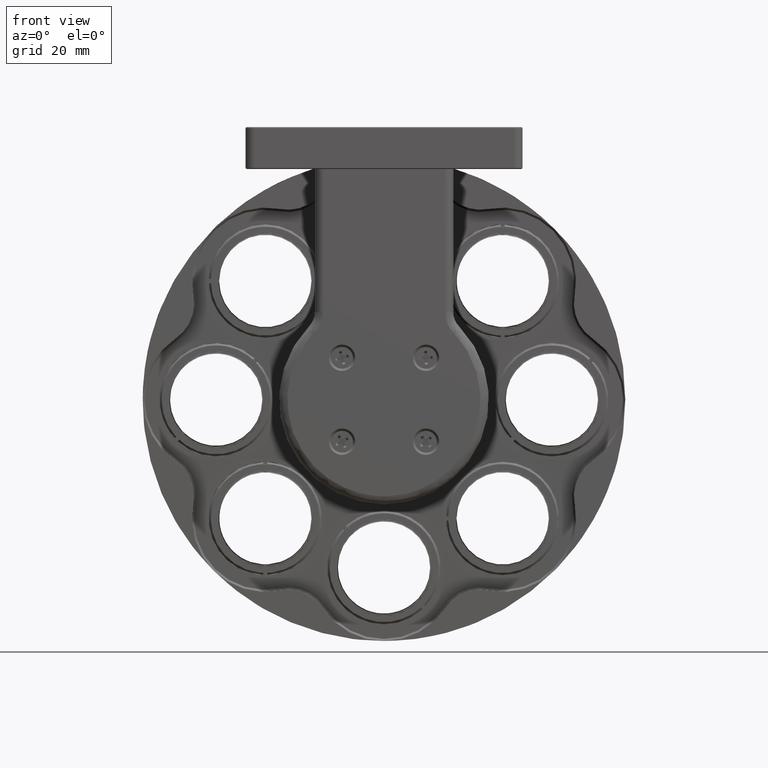
[diagram: clean part render]
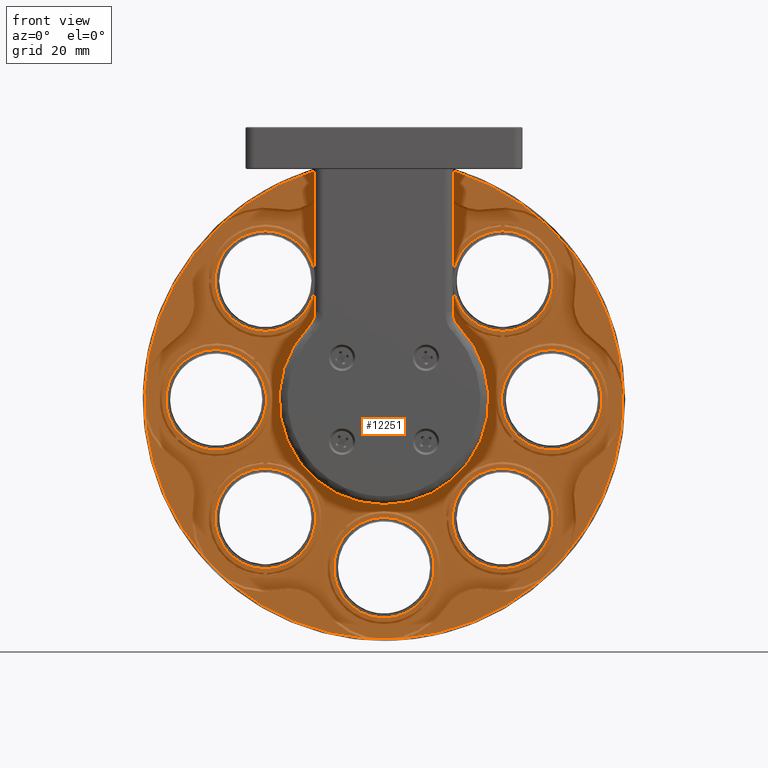
[diagram: same view with one face highlighted and labeled with its STEP entity id]
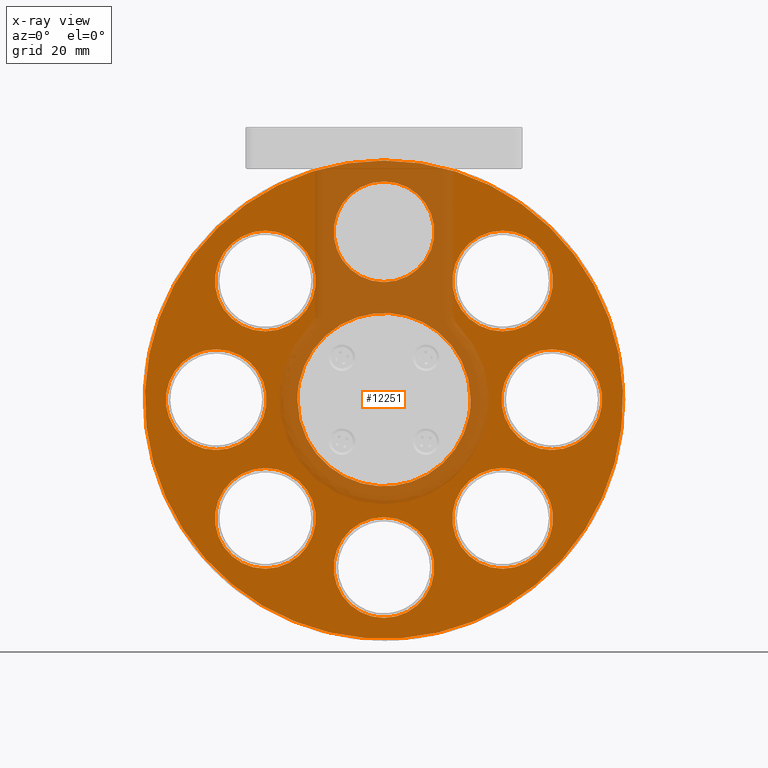
[diagram: x-ray of the same camera — body ghosted, the highlighted face saturated]
A machine part, front view. The second image highlights one B-rep face of the part: STEP entity #12251.
The next image is the same camera in x-ray: the body ghosted, the highlighted face saturated — about 24% of this face is hidden behind the body in this view.
In plain terms, the highlighted planar face has unit normal (-0, 1, 0).
Its self-contained STEP definition (entity closure, byte-faithful):
#8 = CARTESIAN_POINT ( 'NONE',  ( -8.246033281826617767, 30.75879132876270106, 65.66808627298580348 ) ) ;
#11 = CARTESIAN_POINT ( 'NONE',  ( -9.176646264180186918, 30.75879132876271171, 77.44526964778852118 ) ) ;
#16 = ORIENTED_EDGE ( 'NONE', *, *, #13305, .T. ) ;
#99 = CARTESIAN_POINT ( 'NONE',  ( -47.62253059996467641, 30.75879132876270816, 77.64006291967420736 ) ) ;
#135 = DIRECTION ( 'NONE',  ( 0.000000000000000000, 0.000000000000000000, -1.000000000000000000 ) ) ;
#174 = DIRECTION ( 'NONE',  ( 0.000000000000000000, 0.000000000000000000, 1.000000000000000000 ) ) ;
#176 = ORIENTED_EDGE ( 'NONE', *, *, #3730, .T. ) ;
#196 = CARTESIAN_POINT ( 'NONE',  ( -35.49202580912994875, 30.75879132876270106, 89.40904877154432029 ) ) ;
#228 = ORIENTED_EDGE ( 'NONE', *, *, #5661, .T. ) ;
#291 = CARTESIAN_POINT ( 'NONE',  ( -47.60569445880931738, 30.75879132876270816, 77.68221559721835945 ) ) ;
#382 = CARTESIAN_POINT ( 'NONE',  ( -35.96107100944124113, 30.75879132876270461, 89.23082696644345901 ) ) ;
#480 = CARTESIAN_POINT ( 'NONE',  ( -32.15651827430886556, 30.75879132876270461, 90.31241097755872715 ) ) ;
#602 = CARTESIAN_POINT ( 'NONE',  ( -32.48302628658164082, 30.75879132876271171, 49.74978264791967320 ) ) ;
#679 = CARTESIAN_POINT ( 'NONE',  ( -28.43780630113369412, 30.75879132876271171, 97.99999999999998579 ) ) ;
#695 = CARTESIAN_POINT ( 'NONE',  ( -44.94189577211832187, 30.75879132876271527, 57.50718910967075459 ) ) ;
#770 = AXIS2_PLACEMENT_3D ( 'NONE', #6825, #12704, #15697 ) ;
#790 = CARTESIAN_POINT ( 'NONE',  ( -36.60326747573372330, 30.75879132876269395, 51.03152670916762190 ) ) ;
#894 = CARTESIAN_POINT ( 'NONE',  ( -46.04911513274408463, 30.75879132876270461, 59.21484729787681545 ) ) ;
#981 = CARTESIAN_POINT ( 'NONE',  ( -48.74686880904738473, 30.75879132876270106, 66.26303656965896494 ) ) ;
#1072 = CARTESIAN_POINT ( 'NONE',  ( -8.159643967711595280, 30.75879132876270106, 66.09849783963286995 ) ) ;
#1175 = CARTESIAN_POINT ( 'NONE',  ( -24.95216658499240481, 30.75879132876271171, 49.64603340395542119 ) ) ;
#1267 = CARTESIAN_POINT ( 'NONE',  ( -17.65265359885445662, 30.75879132876270816, 52.38869116834072770 ) ) ;
#1269 = CARTESIAN_POINT ( 'NONE',  ( -10.96532435036207254, 30.75879132876270461, 81.00650588562649546 ) ) ;
#1315 = DIRECTION ( 'NONE',  ( -3.017676853237606362E-28, -1.000000000000000000, 1.445602896647339163E-16 ) ) ;
#1362 = CARTESIAN_POINT ( 'NONE',  ( -7.902721015113496783, 30.75879132876269750, 67.48425444194356260 ) ) ;
#1464 = CARTESIAN_POINT ( 'NONE',  ( -11.35115067514168175, 30.75879132876271171, 58.40356055917490607 ) ) ;
#1467 = CARTESIAN_POINT ( 'NONE',  ( -9.028757529475104349, 30.75879132876271171, 77.05421950798633191 ) ) ;
#1644 = CARTESIAN_POINT ( 'NONE',  ( -43.54346864616201884, 30.75879132876270106, 84.09787399738843305 ) ) ;
#1665 = DIRECTION ( 'NONE',  ( 0.000000000000000000, -2.891205793294681285E-16, -1.000000000000000000 ) ) ;
#1743 = CARTESIAN_POINT ( 'NONE',  ( -20.67472148095529505, 30.75879132876269750, 89.13528218560379912 ) ) ;
#1840 = CARTESIAN_POINT ( 'NONE',  ( -25.92188542842002619, 30.75879132876270461, 90.53505283892512523 ) ) ;
#1930 = CARTESIAN_POINT ( 'NONE',  ( -40.93061719137105570, 30.75879132876270106, 86.50408947104892832 ) ) ;
#2024 = CARTESIAN_POINT ( 'NONE',  ( -46.62939450927175500, 30.75879132876270816, 79.81567813135023925 ) ) ;
#2091 = FACE_BOUND ( 'NONE', #11076, .T. ) ;
#2143 = CARTESIAN_POINT ( 'NONE',  ( -48.62124935235615197, 30.75879132876270461, 65.58410770325798467 ) ) ;
#2234 = CARTESIAN_POINT ( 'NONE',  ( -44.04732340068765239, 30.75879132876269395, 56.40605959559715643 ) ) ;
#2240 = VERTEX_POINT ( 'NONE', #13970 ) ;
#2330 = CARTESIAN_POINT ( 'NONE',  ( -47.69896633791824314, 30.75879132876271171, 62.55473035220653344 ) ) ;
#2336 = CARTESIAN_POINT ( 'NONE',  ( -0.1535350536474473782, 30.75879132876270461, 86.28427124752109023 ) ) ;
#2403 = CARTESIAN_POINT ( 'NONE',  ( -48.72767137238506052, 30.75879132876270461, 73.83982931651129888 ) ) ;
#2426 = CARTESIAN_POINT ( 'NONE',  ( -48.83732813522895810, 30.75879132876269395, 66.78646914050975170 ) ) ;
#2520 = CARTESIAN_POINT ( 'NONE',  ( -32.21474358581461672, 30.75879132876270106, 49.69833472001993613 ) ) ;
#2612 = CARTESIAN_POINT ( 'NONE',  ( -29.70050870793281206, 30.75879132876270461, 49.35003242886858033 ) ) ;
#2807 = CARTESIAN_POINT ( 'NONE',  ( -11.86151138990727461, 30.75879132876270816, 57.67613112091068928 ) ) ;
#2898 = CARTESIAN_POINT ( 'NONE',  ( -8.187588948966517677, 30.75879132876269040, 65.95478001447564509 ) ) ;
#2900 = CARTESIAN_POINT ( 'NONE',  ( -8.128743793053274658, 30.75879132876271171, 73.73696343034168876 ) ) ;
#3004 = CARTESIAN_POINT ( 'NONE',  ( -11.93371683000036931, 30.75879132876271527, 82.49281089032227499 ) ) ;
#3085 = CARTESIAN_POINT ( 'NONE',  ( -56.72207754845271666, 30.75879132876270106, 41.71572875247871082 ) ) ;
#3092 = CARTESIAN_POINT ( 'NONE',  ( -20.75559070383637561, 30.75879132876270106, 89.16788815776205013 ) ) ;
#3176 = CARTESIAN_POINT ( 'NONE',  ( -35.88307594886803287, 30.75879132876270461, 89.26116003686037459 ) ) ;
#3265 = DIRECTION ( 'NONE',  ( -3.017624609044243408E-28, -1.000000000000000000, 1.445602896647340396E-16 ) ) ;
#3272 = CARTESIAN_POINT ( 'NONE',  ( -19.71515625583051090, 30.75879132876270816, 88.72316488068362617 ) ) ;
#3370 = CARTESIAN_POINT ( 'NONE',  ( -31.65127006632965134, 30.75879132876270461, 90.39953424835815099 ) ) ;
#3463 = CARTESIAN_POINT ( 'NONE',  ( -47.52381381544149264, 30.75879132876271171, 77.88419803251157703 ) ) ;
#3585 = CARTESIAN_POINT ( 'NONE',  ( -36.32200433355979641, 30.75879132876270461, 50.91399248560184532 ) ) ;
#3730 = EDGE_CURVE ( 'NONE', #11145, #13548, #8125, .T. ) ;
#3861 = CARTESIAN_POINT ( 'NONE',  ( -48.39174881738090050, 30.75879132876270816, 64.60988891494895370 ) ) ;
#3961 = CARTESIAN_POINT ( 'NONE',  ( -36.12002189826799992, 30.75879132876270461, 50.83211184223881673 ) ) ;
#4052 = CARTESIAN_POINT ( 'NONE',  ( -15.94499541060863734, 30.75879132876269750, 53.49591052903954846 ) ) ;
#4054 = CARTESIAN_POINT ( 'NONE',  ( -16.98910176089874113, 30.75879132876270106, 87.18597295381297840 ) ) ;
#4245 = CARTESIAN_POINT ( 'NONE',  ( -17.43130041539999553, 30.75879132876270816, 52.52751804932479729 ) ) ;
#4247 = CARTESIAN_POINT ( 'NONE',  ( -9.206979334601777865, 30.75879132876271882, 77.52326470837601846 ) ) ;
#4338 = CARTESIAN_POINT ( 'NONE',  ( -9.269918143289187284, 30.75879132876270816, 62.31778440278221609 ) ) ;
#4427 = CARTESIAN_POINT ( 'NONE',  ( -24.70084287070976714, 30.75879132876271171, 49.69093749200279575 ) ) ;
#4429 = CARTESIAN_POINT ( 'NONE',  ( -11.10510725468414961, 30.75879132876270816, 81.22532331475909473 ) ) ;
#4530 = CARTESIAN_POINT ( 'NONE',  ( -45.37415296008498444, 30.75879132876269750, 81.81695355973818096 ) ) ;
#4623 = CARTESIAN_POINT ( 'NONE',  ( -32.05942950458508278, 30.75879132876270106, 90.33000411266279173 ) ) ;
#4629 = CARTESIAN_POINT ( 'NONE',  ( -28.43780630096670237, 30.75879132876271171, 18.00000000000007105 ) ) ;
#4716 = CARTESIAN_POINT ( 'NONE',  ( -22.40650357205939613, 30.75879132876269040, 89.76958465221325412 ) ) ;
#4720 = VERTEX_POINT ( 'NONE', #16641 ) ;
#4815 = CARTESIAN_POINT ( 'NONE',  ( -39.44431218669343764, 30.75879132876271171, 87.47248195067757592 ) ) ;
#4883 = FACE_BOUND ( 'NONE', #8247, .T. ) ;
#4911 = CARTESIAN_POINT ( 'NONE',  ( -37.63648353988408957, 30.75879132876269750, 88.51123214140430662 ) ) ;
#4974 = FACE_BOUND ( 'NONE', #15288, .T. ) ;
#5008 = VERTEX_POINT ( 'NONE', #6633 ) ;
#5120 = CARTESIAN_POINT ( 'NONE',  ( -32.76972002807764994, 30.75879132876270461, 49.80822698078266342 ) ) ;
#5192 = CARTESIAN_POINT ( 'NONE',  ( -48.73947107404582368, 30.75879132876270816, 73.77694002405114304 ) ) ;
#5364 = CARTESIAN_POINT ( 'NONE',  ( -48.73541237937891424, 30.75879132876270461, 73.79869642276182162 ) ) ;
#5392 = CARTESIAN_POINT ( 'NONE',  ( -46.94903844252463898, 30.75879132876270461, 60.80132276130559177 ) ) ;
#5493 = CARTESIAN_POINT ( 'NONE',  ( -25.76953034106028895, 30.75879132876271171, 49.51875970484312717 ) ) ;
#5584 = CARTESIAN_POINT ( 'NONE',  ( -21.38358679303330234, 30.75879132876270816, 50.59095122843137204 ) ) ;
#5586 = CARTESIAN_POINT ( 'NONE',  ( -7.787806301050198776, 30.75879132876270461, 70.63143883680025681 ) ) ;
#5661 = EDGE_CURVE ( 'NONE', #9460, #9460, #11217, .T. ) ;
#5676 = CARTESIAN_POINT ( 'NONE',  ( -20.18797581741503677, 30.75879132876270816, 51.05665723264396405 ) ) ;
#5678 = CARTESIAN_POINT ( 'NONE',  ( -15.13057728224406695, 30.75879132876270461, 85.81886811469543375 ) ) ;
#5774 = CARTESIAN_POINT ( 'NONE',  ( -20.91454159266928414, 30.75879132876270106, 50.76917303355261879 ) ) ;
#5861 = CARTESIAN_POINT ( 'NONE',  ( -7.787806301050196112, 30.75879132876270461, 70.00000000004310152 ) ) ;
#5863 = CARTESIAN_POINT ( 'NONE',  ( -9.494463533666133159, 30.75879132876269750, 78.24983048358369331 ) ) ;
#5942 = DIRECTION ( 'NONE',  ( 0.000000000000000000, 0.000000000000000000, -1.000000000000000000 ) ) ;
#5954 = CARTESIAN_POINT ( 'NONE',  ( -34.94120628311484467, 30.75879132876270816, 89.60432457297662268 ) ) ;
#6059 = CARTESIAN_POINT ( 'NONE',  ( -35.99841988284750016, 30.75879132876270106, 89.21617752002089219 ) ) ;
#6068 = EDGE_CURVE ( 'NONE', #2240, #2240, #12147, .T. ) ;
#6150 = CARTESIAN_POINT ( 'NONE',  ( -24.59797698454435277, 30.75879132876270461, 90.28986507133592454 ) ) ;
#6151 = B_SPLINE_CURVE_WITH_KNOTS ( 'NONE', 3,
 ( #7032, #5586, #17510, #14535, #14732, #9921, #18970, #10207, #7409, #2900, #8758, #15895, #14350, #1467, #7320, #11, #4247, #8574, #5863, #11751, #17597, #14448, #1269, #18867, #4429, #3004, #17225, #11468, #5678, #17314, #8855, #8480, #4054, #11567, #17414, #13658, #3272, #15107, #10576, #1743, #3092, #10485, #9140, #4716, #14821, #11947, #15015, #10774, #6150, #9326, #16443, #1840, #13277, #7689, #13373, #17792, #3370, #16265, #4623, #16354, #480, #12034, #13560, #15202, #5954, #196, #17978, #3176, #382, #6059, #16542, #4911, #6242, #9232, #4815, #17882, #12129, #1930, #9034, #1644, #10677, #14917, #4530, #7781, #6339, #12233, #18079, #2024, #16634, #7596, #3463, #13470, #291, #99, #11845, #17694, #10395, #8946, #7494, #12689, #2403, #5364, #5192, #16726, #18465, #15587 ),
 .UNSPECIFIED., .F., .F.,
 ( 4, 1, 1, 1, 1, 1, 2, 2, 1, 1, 1, 1, 2, 2, 1, 1, 1, 2, 2, 2, 1, 1, 1, 2, 2, 1, 1, 1, 1, 2, 2, 1, 1, 1, 1, 1, 2, 2, 2, 1, 1, 1, 1, 1, 2, 2, 1, 1, 1, 1, 2, 2, 1, 1, 1, 2, 2, 2, 1, 1, 1, 2, 2, 1, 1, 1, 1, 2, 2, 1, 1, 1, 1, 1, 2, 2, 4 ),
 ( 0.000000000000000000, 0.03125000000000271311, 0.04687500000000442008, 0.05468750000000526662, 0.05859375000000569683, 0.06054687500000625888, 0.06152343750000620337, 0.06250000000000614786, 0.09374999999999432398, 0.1093749999999884259, 0.1171874999999854838, 0.1210937499999837075, 0.1230468749999825140, 0.1249999999999813205, 0.1562499999999706901, 0.1718749999999656664, 0.1796874999999631128, 0.1835937499999615585, 0.1874999999999600042, 0.2499999999999368838, 0.2812499999999251155, 0.2968749999999189537, 0.3046874999999159006, 0.3085937499999143463, 0.3124999999999127920, 0.3437499999998986921, 0.3593749999998915312, 0.3671874999998880340, 0.3710937499998864797, 0.3730468749998858136, 0.3749999999998851474, 0.4062499999998737676, 0.4218749999998679390, 0.4296874999998650524, 0.4335937499998636091, 0.4355468749998628875, 0.4365234374998625544, 0.4374999999998621658, 0.4999999999998401279, 0.5312499999998290257, 0.5468749999998235856, 0.5546874999998208100, 0.5585937499998195888, 0.5605468749998190336, 0.5615234374998190336, 0.5624999999998190336, 0.5937499999998229194, 0.6093749999998251399, 0.6171874999998260281, 0.6210937499998265832, 0.6230468749998268052, 0.6249999999998271383, 0.6562499999998337996, 0.6718749999998369082, 0.6796874999998383515, 0.6835937499998389066, 0.6874999999998394618, 0.7499999999998514522, 0.7812499999998572253, 0.7968749999998602229, 0.8046874999998616662, 0.8085937499998625544, 0.8124999999998634426, 0.8437499999998729905, 0.8593749999998774314, 0.8671874999998799849, 0.8710937499998812061, 0.8730468749998818723, 0.8749999999998824274, 0.9062499999998967493, 0.9218749999999039657, 0.9296874999999078515, 0.9335937499999094058, 0.9355468749999106270, 0.9365234374999115152, 0.9374999999999125144, 1.000000000000000000 ),
 .UNSPECIFIED. ) ;
#6242 = CARTESIAN_POINT ( 'NONE',  ( -38.70118207338180127, 30.75879132876270461, 87.92497181246420723 ) ) ;
#6247 = VERTEX_POINT ( 'NONE', #7500 ) ;
#6339 = CARTESIAN_POINT ( 'NONE',  ( -45.62377925486249097, 30.75879132876270461, 81.44870454015239147 ) ) ;
#6347 = VERTEX_POINT ( 'NONE', #11850 ) ;
#6459 = CARTESIAN_POINT ( 'NONE',  ( -32.33930846142099114, 30.75879132876270461, 49.72183766666311300 ) ) ;
#6548 = CARTESIAN_POINT ( 'NONE',  ( -42.53568029843905407, 30.75879132876270461, 54.89433765490236539 ) ) ;
#6633 = CARTESIAN_POINT ( 'NONE',  ( -56.72207754857138440, 30.75879132876270461, 86.28427124740275644 ) ) ;
#6650 = CARTESIAN_POINT ( 'NONE',  ( -35.41644737717822977, 30.75879132876270461, 50.55340569437093734 ) ) ;
#6744 = CARTESIAN_POINT ( 'NONE',  ( -45.77050534741510290, 30.75879132876270461, 58.77467668524132449 ) ) ;
#6799 = CIRCLE ( 'NONE', #7411, 11.99999999999999645 ) ;
#6825 = CARTESIAN_POINT ( 'NONE',  ( -0.1535350535292051566, 30.75879132876270461, 41.71572875259717250 ) ) ;
#6838 = CARTESIAN_POINT ( 'NONE',  ( -41.74503531986380978, 30.75879132876269750, 54.18113188533415325 ) ) ;
#6843 = CARTESIAN_POINT ( 'NONE',  ( -0.1535350535292051566, 30.75879132876270461, 29.71572875259719027 ) ) ;
#6932 = CARTESIAN_POINT ( 'NONE',  ( -8.136141528054571026, 30.75879132876270461, 66.22305997594705218 ) ) ;
#7027 = EDGE_CURVE ( 'NONE', #14071, #14071, #17682, .T. ) ;
#7029 = CARTESIAN_POINT ( 'NONE',  ( -27.80645509754423372, 30.75879132876271171, 49.34998378556569065 ) ) ;
#7032 = CARTESIAN_POINT ( 'NONE',  ( -7.787806301050196112, 30.75879132876270461, 70.00000000004310152 ) ) ;
#7123 = CARTESIAN_POINT ( 'NONE',  ( -10.77207212991775442, 30.75879132876271171, 59.28404006072206300 ) ) ;
#7215 = CARTESIAN_POINT ( 'NONE',  ( -21.93440631909330918, 30.75879132876271527, 50.39567542698178215 ) ) ;
#7307 = DIRECTION ( 'NONE',  ( 0.000000000000000000, -1.000000000000000000, 0.000000000000000000 ) ) ;
#7317 = CARTESIAN_POINT ( 'NONE',  ( -9.253082002137777096, 30.75879132876269750, 62.35993708031851668 ) ) ;
#7320 = CARTESIAN_POINT ( 'NONE',  ( -9.131512137651297323, 30.75879132876271527, 77.32817304043645379 ) ) ;
#7384 = FACE_BOUND ( 'NONE', #9385, .T. ) ;
#7409 = CARTESIAN_POINT ( 'NONE',  ( -8.125396328976609794, 30.75879132876271527, 73.71871740754606606 ) ) ;
#7411 = AXIS2_PLACEMENT_3D ( 'NONE', #13230, #1315, #17635 ) ;
#7476 = CIRCLE ( 'NONE', #14560, 57.00000000000000711 ) ;
#7494 = CARTESIAN_POINT ( 'NONE',  ( -48.68802365312036784, 30.75879132876270106, 74.04521998557177653 ) ) ;
#7500 = CARTESIAN_POINT ( 'NONE',  ( -68.43780630105020180, 30.75879132876270816, 57.99999999991623412 ) ) ;
#7529 = AXIS2_PLACEMENT_3D ( 'NONE', #13457, #7307, #5942 ) ;
#7596 = CARTESIAN_POINT ( 'NONE',  ( -47.40627959186971196, 30.75879132876270106, 78.16546117468715238 ) ) ;
#7661 = PLANE ( 'NONE',  #17167 ) ;
#7689 = CARTESIAN_POINT ( 'NONE',  ( -29.06915750461795156, 30.75879132876270106, 90.65001621443842339 ) ) ;
#7781 = CARTESIAN_POINT ( 'NONE',  ( -45.52446192696136507, 30.75879132876269395, 81.59643944082984035 ) ) ;
#7869 = ORIENTED_EDGE ( 'NONE', *, *, #15060, .T. ) ;
#7908 = CARTESIAN_POINT ( 'NONE',  ( -34.46910902994676462, 30.75879132876269750, 50.23041534775859418 ) ) ;
#7982 = VERTEX_POINT ( 'NONE', #679 ) ;
#7996 = CARTESIAN_POINT ( 'NONE',  ( -48.04213087406869676, 30.75879132876271527, 63.49660001806818599 ) ) ;
#8089 = CARTESIAN_POINT ( 'NONE',  ( -49.08780630105019327, 30.75879132876270461, 69.99999999995688427 ) ) ;
#8125 = B_SPLINE_CURVE_WITH_KNOTS ( 'NONE', 3,
 ( #8089, #18399, #15612, #9453, #2426, #11090, #10889, #14158, #17028, #981, #2143, #3861, #7996, #11274, #13966, #2330, #9828, #13871, #8187, #5392, #16940, #894, #9738, #12344, #6744, #695, #2234, #6548, #6838, #18198, #14067, #16752, #18295, #12714, #9636, #17130, #15508, #790, #3585, #12625, #3961, #18486, #6650, #7908, #13784, #5120, #602, #6459, #12437, #10996, #2520, #11563, #2612, #7029, #11664, #5493, #12911, #1175, #8756, #17411, #10017, #4427, #14249, #8477, #7215, #5584, #18865, #14347, #5774, #13191, #5676, #17507, #13094, #1267, #4245, #10204, #18772, #4052, #10111, #15980, #9919, #2807, #8662, #1464, #14444, #10297, #7123, #15892, #14533, #11466, #8572, #8380, #4338, #7317, #18966, #16072, #11373, #8, #2898, #1072, #15798, #17223, #6932, #1362, #17312, #5861 ),
 .UNSPECIFIED., .F., .F.,
 ( 4, 1, 1, 1, 1, 1, 2, 2, 1, 1, 1, 1, 2, 2, 1, 1, 1, 2, 2, 2, 1, 1, 1, 2, 2, 1, 1, 1, 1, 2, 2, 1, 1, 1, 1, 1, 2, 2, 2, 1, 1, 1, 1, 1, 2, 2, 1, 1, 1, 1, 2, 2, 1, 1, 1, 2, 2, 2, 1, 1, 1, 2, 2, 1, 1, 1, 1, 2, 2, 1, 1, 1, 1, 1, 2, 2, 4 ),
 ( 0.000000000000000000, 0.03124999999999134026, 0.04687499999998666345, 0.05468749999998430422, 0.05859374999998309685, 0.06054687499998286093, 0.06152343749998243766, 0.06249999999998201439, 0.09374999999997554734, 0.1093749999999723138, 0.1171874999999706901, 0.1210937499999702460, 0.1230468749999699685, 0.1249999999999699962, 0.1562499999999716616, 0.1718749999999725775, 0.1796874999999730216, 0.1835937499999731881, 0.1874999999999733546, 0.2499999999999781841, 0.2812499999999803491, 0.2968749999999815703, 0.3046874999999822919, 0.3085937499999826805, 0.3124999999999831246, 0.3437499999999862332, 0.3593749999999877875, 0.3671874999999885092, 0.3710937499999887867, 0.3730468749999889533, 0.3749999999999890643, 0.4062499999999910072, 0.4218749999999920064, 0.4296874999999925615, 0.4335937499999929501, 0.4355468749999933387, 0.4365234374999935052, 0.4374999999999936717, 0.4999999999999922284, 0.5312499999999915623, 0.5468749999999912292, 0.5546874999999910072, 0.5585937499999908962, 0.5605468749999907851, 0.5615234374999906741, 0.5624999999999906741, 0.5937499999999921174, 0.6093749999999927836, 0.6171874999999931166, 0.6210937499999933387, 0.6230468749999934497, 0.6249999999999935607, 0.6562499999999938938, 0.6718749999999940048, 0.6796874999999940048, 0.6835937499999940048, 0.6874999999999938938, 0.7499999999999927836, 0.7812499999999923395, 0.7968749999999922284, 0.8046874999999922284, 0.8085937499999923395, 0.8124999999999923395, 0.8437499999999928946, 0.8593749999999932276, 0.8671874999999933387, 0.8710937499999933387, 0.8730468749999934497, 0.8749999999999935607, 0.9062499999999938938, 0.9218749999999940048, 0.9296874999999940048, 0.9335937499999944489, 0.9355468749999943379, 0.9365234374999942268, 0.9374999999999942268, 1.000000000000000000 ),
 .UNSPECIFIED. ) ;
#8187 = CARTESIAN_POINT ( 'NONE',  ( -47.38114906845142116, 30.75879132876271527, 61.75016951645964269 ) ) ;
#8247 = EDGE_LOOP ( 'NONE', ( #17464 ) ) ;
#8380 = CARTESIAN_POINT ( 'NONE',  ( -9.302524115448463249, 30.75879132876270461, 62.23691517989736610 ) ) ;
#8477 = CARTESIAN_POINT ( 'NONE',  ( -23.04769521596573512, 30.75879132876270461, 50.04605748366963525 ) ) ;
#8480 = CARTESIAN_POINT ( 'NONE',  ( -16.84136686022213425, 30.75879132876270816, 87.08665562591241383 ) ) ;
#8572 = CARTESIAN_POINT ( 'NONE',  ( -9.351798786652597784, 30.75879132876269750, 62.11580196749042670 ) ) ;
#8574 = CARTESIAN_POINT ( 'NONE',  ( -9.221628781030673849, 30.75879132876270816, 77.56061358179958631 ) ) ;
#8662 = CARTESIAN_POINT ( 'NONE',  ( -11.50145964201981030, 30.75879132876270816, 58.18304644026970607 ) ) ;
#8740 = ORIENTED_EDGE ( 'NONE', *, *, #13704, .T. ) ;
#8756 = CARTESIAN_POINT ( 'NONE',  ( -24.81618309752841967, 30.75879132876270106, 49.66999588733802540 ) ) ;
#8758 = CARTESIAN_POINT ( 'NONE',  ( -8.254363249735998664, 30.75879132876270461, 74.41589229672113959 ) ) ;
#8801 = DIRECTION ( 'NONE',  ( 0.000000000000000000, -1.000000000000000000, 0.000000000000000000 ) ) ;
#8855 = CARTESIAN_POINT ( 'NONE',  ( -16.62085274131495538, 30.75879132876271171, 86.93634665903687164 ) ) ;
#8946 = CARTESIAN_POINT ( 'NONE',  ( -48.62957932024857399, 30.75879132876269750, 74.33191372710284384 ) ) ;
#8964 = DIRECTION ( 'NONE',  ( -3.017624609044244753E-28, -1.000000000000000000, 1.445602896647341382E-16 ) ) ;
#9034 = CARTESIAN_POINT ( 'NONE',  ( -42.03174670542460234, 30.75879132876269395, 85.60951709963829614 ) ) ;
#9131 = DIRECTION ( 'NONE',  ( 0.000000000000000000, -2.891205793294681285E-16, -1.000000000000000000 ) ) ;
#9140 = CARTESIAN_POINT ( 'NONE',  ( -21.45916522486833244, 30.75879132876270106, 89.44659430561299018 ) ) ;
#9200 = CIRCLE ( 'NONE', #15675, 11.99999999999998934 ) ;
#9232 = CARTESIAN_POINT ( 'NONE',  ( -39.22295900323437934, 30.75879132876270106, 87.61130883166318029 ) ) ;
#9326 = CARTESIAN_POINT ( 'NONE',  ( -24.63910987829115484, 30.75879132876271527, 90.29760607832928088 ) ) ;
#9385 = EDGE_LOOP ( 'NONE', ( #16380 ) ) ;
#9453 = CARTESIAN_POINT ( 'NONE',  ( -48.91902531476203819, 30.75879132876269750, 67.33160902128187786 ) ) ;
#9460 = VERTEX_POINT ( 'NONE', #6843 ) ;
#9519 = CARTESIAN_POINT ( 'NONE',  ( -0.1535350536474473782, 30.75879132876270461, 98.28427124752107602 ) ) ;
#9532 = CIRCLE ( 'NONE', #13822, 11.99999999999998934 ) ;
#9606 = DIRECTION ( 'NONE',  ( 0.000000000000000000, -1.000000000000000000, 0.000000000000000000 ) ) ;
#9636 = CARTESIAN_POINT ( 'NONE',  ( -39.15376624032823116, 30.75879132876271171, 52.33426582886620793 ) ) ;
#9735 = AXIS2_PLACEMENT_3D ( 'NONE', #10525, #16677, #13602 ) ;
#9738 = CARTESIAN_POINT ( 'NONE',  ( -45.91028825174623762, 30.75879132876270816, 58.99349411439347080 ) ) ;
#9828 = CARTESIAN_POINT ( 'NONE',  ( -47.66863326749761143, 30.75879132876270106, 62.47673529162142358 ) ) ;
#9919 = CARTESIAN_POINT ( 'NONE',  ( -12.61893818636955267, 30.75879132876270816, 56.69277098120519298 ) ) ;
#9921 = CARTESIAN_POINT ( 'NONE',  ( -8.083846355457202648, 30.75879132876270106, 73.48567565940116708 ) ) ;
#10017 = CARTESIAN_POINT ( 'NONE',  ( -24.71909432779536075, 30.75879132876271527, 49.68758902244147180 ) ) ;
#10111 = CARTESIAN_POINT ( 'NONE',  ( -14.84386589666431533, 30.75879132876270106, 54.39048290034099153 ) ) ;
#10204 = CARTESIAN_POINT ( 'NONE',  ( -17.28423507104469792, 30.75879132876270106, 52.62104705647271885 ) ) ;
#10207 = CARTESIAN_POINT ( 'NONE',  ( -8.118326380747788562, 30.75879132876270461, 73.67989019094493131 ) ) ;
#10277 = DIRECTION ( 'NONE',  ( 0.000000000000000000, 1.000000000000000000, 0.000000000000000000 ) ) ;
#10297 = CARTESIAN_POINT ( 'NONE',  ( -11.20157110241692422, 30.75879132876270461, 58.62712840912173107 ) ) ;
#10395 = CARTESIAN_POINT ( 'NONE',  ( -48.50247317310934392, 30.75879132876269750, 74.90233357484770238 ) ) ;
#10485 = CARTESIAN_POINT ( 'NONE',  ( -20.79774338137317358, 30.75879132876270106, 89.18472429891390618 ) ) ;
#10525 = CARTESIAN_POINT ( 'NONE',  ( -28.43780630113369412, 30.75879132876271171, 109.9999999999999858 ) ) ;
#10576 = CARTESIAN_POINT ( 'NONE',  ( -20.55360826855382683, 30.75879132876270461, 89.08600751440113186 ) ) ;
#10600 = AXIS2_PLACEMENT_3D ( 'NONE', #14958, #8801, #135 ) ;
#10609 = CIRCLE ( 'NONE', #7529, 11.99999999999999645 ) ;
#10677 = CARTESIAN_POINT ( 'NONE',  ( -44.25667441574088912, 30.75879132876269750, 83.30722901881287612 ) ) ;
#10755 = ORIENTED_EDGE ( 'NONE', *, *, #16776, .T. ) ;
#10774 = CARTESIAN_POINT ( 'NONE',  ( -24.53630414066800469, 30.75879132876271171, 90.27816233333348350 ) ) ;
#10805 = EDGE_LOOP ( 'NONE', ( #15374 ) ) ;
#10839 = CARTESIAN_POINT ( 'NONE',  ( -28.43780630105019824, 30.75879132876270461, 69.99999999999998579 ) ) ;
#10889 = CARTESIAN_POINT ( 'NONE',  ( -48.76780697764551320, 30.75879132876270461, 66.37835822574608358 ) ) ;
#10937 = FACE_BOUND ( 'NONE', #10805, .T. ) ;
#10996 = CARTESIAN_POINT ( 'NONE',  ( -32.23650272380591275, 30.75879132876270816, 49.70239392166971726 ) ) ;
#11076 = EDGE_LOOP ( 'NONE', ( #16 ) ) ;
#11090 = CARTESIAN_POINT ( 'NONE',  ( -48.79176624664318496, 30.75879132876269750, 66.51432434058963850 ) ) ;
#11145 = VERTEX_POINT ( 'NONE', #13426 ) ;
#11217 = CIRCLE ( 'NONE', #770, 11.99999999999998224 ) ;
#11274 = CARTESIAN_POINT ( 'NONE',  ( -47.84685507261897897, 30.75879132876270816, 62.94578049199772352 ) ) ;
#11373 = CARTESIAN_POINT ( 'NONE',  ( -8.373139428947865781, 30.75879132876270461, 65.09766642530422587 ) ) ;
#11466 = CARTESIAN_POINT ( 'NONE',  ( -9.469333010218875302, 30.75879132876270106, 61.83453882531652823 ) ) ;
#11468 = CARTESIAN_POINT ( 'NONE',  ( -14.33993230366562877, 30.75879132876271171, 85.10566234511453843 ) ) ;
#11563 = CARTESIAN_POINT ( 'NONE',  ( -30.95372717357355796, 30.75879132876270106, 49.46494716106657563 ) ) ;
#11567 = CARTESIAN_POINT ( 'NONE',  ( -17.06493471016791830, 30.75879132876270461, 87.23623519863218689 ) ) ;
#11664 = CARTESIAN_POINT ( 'NONE',  ( -26.86324956590834034, 30.75879132876271527, 49.39306464251566808 ) ) ;
#11674 = EDGE_LOOP ( 'NONE', ( #8740, #176 ) ) ;
#11751 = CARTESIAN_POINT ( 'NONE',  ( -9.926574159605797476, 30.75879132876270461, 79.19867723877027288 ) ) ;
#11845 = CARTESIAN_POINT ( 'NONE',  ( -47.88440060665450915, 30.75879132876270816, 76.97864107622646657 ) ) ;
#11850 = CARTESIAN_POINT ( 'NONE',  ( -28.43780630105020180, 30.75879132876270461, 127.0000000000000000 ) ) ;
#11947 = CARTESIAN_POINT ( 'NONE',  ( -24.10589257398152085, 30.75879132876270816, 90.19177301920500156 ) ) ;
#11950 = VERTEX_POINT ( 'NONE', #4629 ) ;
#12034 = CARTESIAN_POINT ( 'NONE',  ( -32.17476973138806784, 30.75879132876270461, 90.30906250799814927 ) ) ;
#12129 = CARTESIAN_POINT ( 'NONE',  ( -39.66312961580936758, 30.75879132876270106, 87.33269904636605929 ) ) ;
#12147 = CIRCLE ( 'NONE', #10600, 11.99999999999999645 ) ;
#12233 = CARTESIAN_POINT ( 'NONE',  ( -45.67404149968540139, 30.75879132876270461, 81.37287159087763655 ) ) ;
#12251 = ADVANCED_FACE ( 'NONE', ( #14702, #7384, #4883, #18349, #16798, #2091, #10937, #16513, #4974, #13729 ), #7661, .T. ) ;
#12298 = DIRECTION ( 'NONE',  ( -3.488278094132890012E-29, 1.000000000000000000, 0.000000000000000000 ) ) ;
#12344 = CARTESIAN_POINT ( 'NONE',  ( -45.81675924458844662, 30.75879132876270461, 58.84642877001744665 ) ) ;
#12437 = CARTESIAN_POINT ( 'NONE',  ( -32.27763561754944277, 30.75879132876270461, 49.71013492866207883 ) ) ;
#12625 = CARTESIAN_POINT ( 'NONE',  ( -36.20089112115284280, 30.75879132876269750, 50.86471781439792750 ) ) ;
#12689 = CARTESIAN_POINT ( 'NONE',  ( -48.71596863438183789, 30.75879132876270816, 73.90150216039167219 ) ) ;
#12704 = DIRECTION ( 'NONE',  ( 0.000000000000000000, -1.000000000000000000, 0.000000000000000000 ) ) ;
#12714 = CARTESIAN_POINT ( 'NONE',  ( -39.81067789192844231, 30.75879132876270816, 52.76376480136689651 ) ) ;
#12911 = CARTESIAN_POINT ( 'NONE',  ( -25.22434253581806018, 30.75879132876271171, 49.60046575164496829 ) ) ;
#12923 = EDGE_LOOP ( 'NONE', ( #228 ) ) ;
#13094 = CARTESIAN_POINT ( 'NONE',  ( -18.17443052869878883, 30.75879132876270461, 52.07502818754251450 ) ) ;
#13191 = CARTESIAN_POINT ( 'NONE',  ( -20.87719271925384845, 30.75879132876269750, 50.78382247997871701 ) ) ;
#13230 = CARTESIAN_POINT ( 'NONE',  ( -28.43780630096670237, 30.75879132876271171, 30.00000000000006750 ) ) ;
#13277 = CARTESIAN_POINT ( 'NONE',  ( -27.17510389404400684, 30.75879132876270816, 90.64996757112314185 ) ) ;
#13305 = EDGE_CURVE ( 'NONE', #6247, #6247, #9532, .T. ) ;
#13373 = CARTESIAN_POINT ( 'NONE',  ( -30.01236303630020430, 30.75879132876270816, 90.60693535749152261 ) ) ;
#13392 = EDGE_CURVE ( 'NONE', #4720, #4720, #9200, .T. ) ;
#13403 = CIRCLE ( 'NONE', #9735, 11.99999999999999645 ) ;
#13426 = CARTESIAN_POINT ( 'NONE',  ( -49.08780630105019327, 30.75879132876270461, 69.99999999995688427 ) ) ;
#13457 = CARTESIAN_POINT ( 'NONE',  ( -56.72207754857138440, 30.75879132876270461, 98.28427124740275644 ) ) ;
#13470 = CARTESIAN_POINT ( 'NONE',  ( -47.57308848664824552, 30.75879132876270106, 77.76308482010377077 ) ) ;
#13548 = VERTEX_POINT ( 'NONE', #13649 ) ;
#13560 = CARTESIAN_POINT ( 'NONE',  ( -32.85369859789339841, 30.75879132876270816, 90.18344305127403970 ) ) ;
#13602 = DIRECTION ( 'NONE',  ( 0.000000000000000000, 0.000000000000000000, -1.000000000000000000 ) ) ;
#13649 = CARTESIAN_POINT ( 'NONE',  ( -7.787806301050196112, 30.75879132876270461, 70.00000000004310152 ) ) ;
#13658 = CARTESIAN_POINT ( 'NONE',  ( -18.62212816976477114, 30.75879132876269395, 88.19158820826358181 ) ) ;
#13704 = EDGE_CURVE ( 'NONE', #13548, #11145, #6151, .T. ) ;
#13729 = FACE_OUTER_BOUND ( 'NONE', #16644, .T. ) ;
#13784 = CARTESIAN_POINT ( 'NONE',  ( -33.34013987576869198, 30.75879132876271527, 49.93533312790838607 ) ) ;
#13822 = AXIS2_PLACEMENT_3D ( 'NONE', #17620, #8964, #1665 ) ;
#13871 = CARTESIAN_POINT ( 'NONE',  ( -47.65398382106865682, 30.75879132876270461, 62.43938641819772073 ) ) ;
#13966 = CARTESIAN_POINT ( 'NONE',  ( -47.74410046444570099, 30.75879132876270816, 62.67182695955497707 ) ) ;
#13970 = CARTESIAN_POINT ( 'NONE',  ( 11.56219369894980353, 30.75879132876270461, 58.00000000008363799 ) ) ;
#14067 = CARTESIAN_POINT ( 'NONE',  ( -40.25475986078871671, 30.75879132876270816, 53.06365334097609576 ) ) ;
#14071 = VERTEX_POINT ( 'NONE', #2336 ) ;
#14158 = CARTESIAN_POINT ( 'NONE',  ( -48.75728622135261503, 30.75879132876270816, 66.32010980905235442 ) ) ;
#14249 = CARTESIAN_POINT ( 'NONE',  ( -24.02191400428910484, 30.75879132876270461, 49.81655694869424167 ) ) ;
#14305 = ORIENTED_EDGE ( 'NONE', *, *, #15752, .T. ) ;
#14347 = CARTESIAN_POINT ( 'NONE',  ( -20.99253665325211315, 30.75879132876270461, 50.73883996313201550 ) ) ;
#14350 = CARTESIAN_POINT ( 'NONE',  ( -8.833481728020878165, 30.75879132876270461, 76.50339998190447943 ) ) ;
#14444 = CARTESIAN_POINT ( 'NONE',  ( -11.25183334723929640, 30.75879132876270461, 58.55129545985008832 ) ) ;
#14448 = CARTESIAN_POINT ( 'NONE',  ( -10.82649746936946222, 30.75879132876270461, 80.78515270215633848 ) ) ;
#14533 = CARTESIAN_POINT ( 'NONE',  ( -9.714641420377867931, 30.75879132876270106, 61.27734995473806379 ) ) ;
#14535 = CARTESIAN_POINT ( 'NONE',  ( -7.956587287338339642, 30.75879132876269040, 72.66839097868866304 ) ) ;
#14560 = AXIS2_PLACEMENT_3D ( 'NONE', #17574, #10277, #174 ) ;
#14702 = FACE_BOUND ( 'NONE', #11674, .T. ) ;
#14732 = CARTESIAN_POINT ( 'NONE',  ( -8.038284466871438383, 30.75879132876270816, 73.21353085947311001 ) ) ;
#14821 = CARTESIAN_POINT ( 'NONE',  ( -23.53547272626103393, 30.75879132876271882, 90.06466687207054633 ) ) ;
#14917 = CARTESIAN_POINT ( 'NONE',  ( -45.01410121220065008, 30.75879132876269395, 82.32386887910283235 ) ) ;
#14958 = CARTESIAN_POINT ( 'NONE',  ( 11.56219369894980353, 30.75879132876270461, 70.00000000008363088 ) ) ;
#15015 = CARTESIAN_POINT ( 'NONE',  ( -24.39258631549668266, 30.75879132876270816, 90.25021735207373297 ) ) ;
#15060 = EDGE_CURVE ( 'NONE', #11950, #11950, #6799, .T. ) ;
#15107 = CARTESIAN_POINT ( 'NONE',  ( -20.27234512639138586, 30.75879132876270106, 88.96847329083790612 ) ) ;
#15202 = CARTESIAN_POINT ( 'NONE',  ( -33.82791738627833666, 30.75879132876270816, 89.95394251627487847 ) ) ;
#15288 = EDGE_LOOP ( 'NONE', ( #7869 ) ) ;
#15368 = DIRECTION ( 'NONE',  ( -1.000000000000000000, -3.488278094132890012E-29, 0.000000000000000000 ) ) ;
#15374 = ORIENTED_EDGE ( 'NONE', *, *, #13392, .T. ) ;
#15508 = CARTESIAN_POINT ( 'NONE',  ( -37.16045634631228012, 30.75879132876271527, 51.27683511932593063 ) ) ;
#15587 = CARTESIAN_POINT ( 'NONE',  ( -49.08780630105019327, 30.75879132876270461, 69.99999999995688427 ) ) ;
#15612 = CARTESIAN_POINT ( 'NONE',  ( -49.04471328327447566, 30.75879132876270106, 68.42528990655391397 ) ) ;
#15675 = AXIS2_PLACEMENT_3D ( 'NONE', #3085, #3265, #9131 ) ;
#15697 = DIRECTION ( 'NONE',  ( 0.000000000000000000, 0.000000000000000000, -1.000000000000000000 ) ) ;
#15752 = EDGE_CURVE ( 'NONE', #6347, #6347, #7476, .T. ) ;
#15757 = ORIENTED_EDGE ( 'NONE', *, *, #17851, .T. ) ;
#15798 = CARTESIAN_POINT ( 'NONE',  ( -8.147941229711298305, 30.75879132876270461, 66.16017068350288355 ) ) ;
#15892 = CARTESIAN_POINT ( 'NONE',  ( -10.24621809280168350, 30.75879132876270816, 60.18432186865821620 ) ) ;
#15895 = CARTESIAN_POINT ( 'NONE',  ( -8.483863784705054201, 30.75879132876269750, 75.39011108501458125 ) ) ;
#15980 = CARTESIAN_POINT ( 'NONE',  ( -13.33214395594411350, 30.75879132876270816, 55.90212600262189824 ) ) ;
#16072 = CARTESIAN_POINT ( 'NONE',  ( -8.668221648794503409, 30.75879132876270461, 63.96869727113370629 ) ) ;
#16265 = CARTESIAN_POINT ( 'NONE',  ( -31.92344601713335095, 30.75879132876269750, 90.35396659604624858 ) ) ;
#16354 = CARTESIAN_POINT ( 'NONE',  ( -32.11768575178935947, 30.75879132876270816, 90.31948190752120809 ) ) ;
#16380 = ORIENTED_EDGE ( 'NONE', *, *, #6068, .T. ) ;
#16443 = CARTESIAN_POINT ( 'NONE',  ( -24.66086901628745309, 30.75879132876270816, 90.30166527998019887 ) ) ;
#16513 = FACE_BOUND ( 'NONE', #12923, .T. ) ;
#16542 = CARTESIAN_POINT ( 'NONE',  ( -36.68763678467027489, 30.75879132876269750, 88.94334276736114475 ) ) ;
#16634 = CARTESIAN_POINT ( 'NONE',  ( -47.16097118170231539, 30.75879132876270461, 78.72265004526828136 ) ) ;
#16641 = CARTESIAN_POINT ( 'NONE',  ( -56.72207754845271666, 30.75879132876269750, 29.71572875247872147 ) ) ;
#16644 = EDGE_LOOP ( 'NONE', ( #14305 ) ) ;
#16677 = DIRECTION ( 'NONE',  ( -3.017624609044235336E-28, -1.000000000000000000, 1.445602896647338670E-16 ) ) ;
#16726 = CARTESIAN_POINT ( 'NONE',  ( -48.97289158698690414, 30.75879132876269750, 72.51574555817326484 ) ) ;
#16752 = CARTESIAN_POINT ( 'NONE',  ( -40.03424574188023399, 30.75879132876270461, 52.91334437409538083 ) ) ;
#16776 = EDGE_CURVE ( 'NONE', #5008, #5008, #10609, .T. ) ;
#16798 = FACE_BOUND ( 'NONE', #17207, .T. ) ;
#16940 = CARTESIAN_POINT ( 'NONE',  ( -46.36277811356698919, 30.75879132876269750, 59.73662422777299952 ) ) ;
#17028 = CARTESIAN_POINT ( 'NONE',  ( -48.75021627312377603, 30.75879132876270461, 66.28128259245256970 ) ) ;
#17130 = CARTESIAN_POINT ( 'NONE',  ( -38.25348443239212770, 30.75879132876270106, 51.80841179174915112 ) ) ;
#17167 = AXIS2_PLACEMENT_3D ( 'NONE', #10839, #12298, #15368 ) ;
#17207 = EDGE_LOOP ( 'NONE', ( #10755 ) ) ;
#17223 = CARTESIAN_POINT ( 'NONE',  ( -8.140200222719441214, 30.75879132876269395, 66.20130357724534065 ) ) ;
#17225 = CARTESIAN_POINT ( 'NONE',  ( -12.82828920140417317, 30.75879132876271171, 83.59394040436902173 ) ) ;
#17312 = CARTESIAN_POINT ( 'NONE',  ( -7.787806301050194335, 30.75879132876270461, 68.73676678604743984 ) ) ;
#17314 = CARTESIAN_POINT ( 'NONE',  ( -16.11393742195241074, 30.75879132876270461, 86.57629491115403653 ) ) ;
#17373 = AXIS2_PLACEMENT_3D ( 'NONE', #9519, #9606, #18648 ) ;
#17411 = CARTESIAN_POINT ( 'NONE',  ( -24.75792685031861495, 30.75879132876270816, 49.68051809247931772 ) ) ;
#17414 = CARTESIAN_POINT ( 'NONE',  ( -17.72184636180444173, 30.75879132876271171, 87.66573417114108224 ) ) ;
#17464 = ORIENTED_EDGE ( 'NONE', *, *, #7027, .T. ) ;
#17507 = CARTESIAN_POINT ( 'NONE',  ( -19.23912906218989960, 30.75879132876270461, 51.48876785860465333 ) ) ;
#17510 = CARTESIAN_POINT ( 'NONE',  ( -7.830899318825895072, 30.75879132876270106, 71.57471009340687829 ) ) ;
#17574 = CARTESIAN_POINT ( 'NONE',  ( -28.43780630105020180, 30.75879132876270461, 69.99999999999998579 ) ) ;
#17597 = CARTESIAN_POINT ( 'NONE',  ( -10.51283448855592795, 30.75879132876270461, 80.26337577228386522 ) ) ;
#17620 = CARTESIAN_POINT ( 'NONE',  ( -68.43780630105020180, 30.75879132876271171, 69.99999999991622701 ) ) ;
#17635 = DIRECTION ( 'NONE',  ( 0.000000000000000000, 0.000000000000000000, -1.000000000000000000 ) ) ;
#17682 = CIRCLE ( 'NONE', #17373, 11.99999999999998224 ) ;
#17694 = CARTESIAN_POINT ( 'NONE',  ( -48.20739095324834267, 30.75879132876271171, 76.03130272906886944 ) ) ;
#17792 = CARTESIAN_POINT ( 'NONE',  ( -31.10608226112122310, 30.75879132876271171, 90.48124029516229427 ) ) ;
#17851 = EDGE_CURVE ( 'NONE', #7982, #7982, #13403, .T. ) ;
#17882 = CARTESIAN_POINT ( 'NONE',  ( -39.59137753105202506, 30.75879132876269750, 87.37895294352848907 ) ) ;
#17978 = CARTESIAN_POINT ( 'NONE',  ( -35.76597934153671332, 30.75879132876270461, 89.30629416338238968 ) ) ;
#18079 = CARTESIAN_POINT ( 'NONE',  ( -46.10354047216723217, 30.75879132876270461, 80.71595993928281132 ) ) ;
#18198 = CARTESIAN_POINT ( 'NONE',  ( -40.76167518015359548, 30.75879132876269750, 53.42370508886816793 ) ) ;
#18295 = CARTESIAN_POINT ( 'NONE',  ( -39.88651084120269275, 30.75879132876270461, 52.81402704619113564 ) ) ;
#18349 = FACE_BOUND ( 'NONE', #18520, .T. ) ;
#18399 = CARTESIAN_POINT ( 'NONE',  ( -49.08780630105018616, 30.75879132876270816, 69.36856116317731846 ) ) ;
#18465 = CARTESIAN_POINT ( 'NONE',  ( -49.08780630105017906, 30.75879132876269395, 71.26323321406944444 ) ) ;
#18486 = CARTESIAN_POINT ( 'NONE',  ( -36.07786922073057667, 30.75879132876270106, 50.81527570108705305 ) ) ;
#18520 = EDGE_LOOP ( 'NONE', ( #15757 ) ) ;
#18648 = DIRECTION ( 'NONE',  ( 0.000000000000000000, 0.000000000000000000, -1.000000000000000000 ) ) ;
#18772 = CARTESIAN_POINT ( 'NONE',  ( -17.21248298629856066, 30.75879132876270106, 52.66730095362835584 ) ) ;
#18865 = CARTESIAN_POINT ( 'NONE',  ( -21.10963326059735579, 30.75879132876270461, 50.69370583660457186 ) ) ;
#18867 = CARTESIAN_POINT ( 'NONE',  ( -11.05885335751611898, 30.75879132876269750, 81.15357122999304806 ) ) ;
#18966 = CARTESIAN_POINT ( 'NONE',  ( -8.991211995412989211, 30.75879132876270816, 63.02135892388929506 ) ) ;
#18970 = CARTESIAN_POINT ( 'NONE',  ( -8.107805624454892168, 30.75879132876270461, 73.62164177424917000 ) ) ;